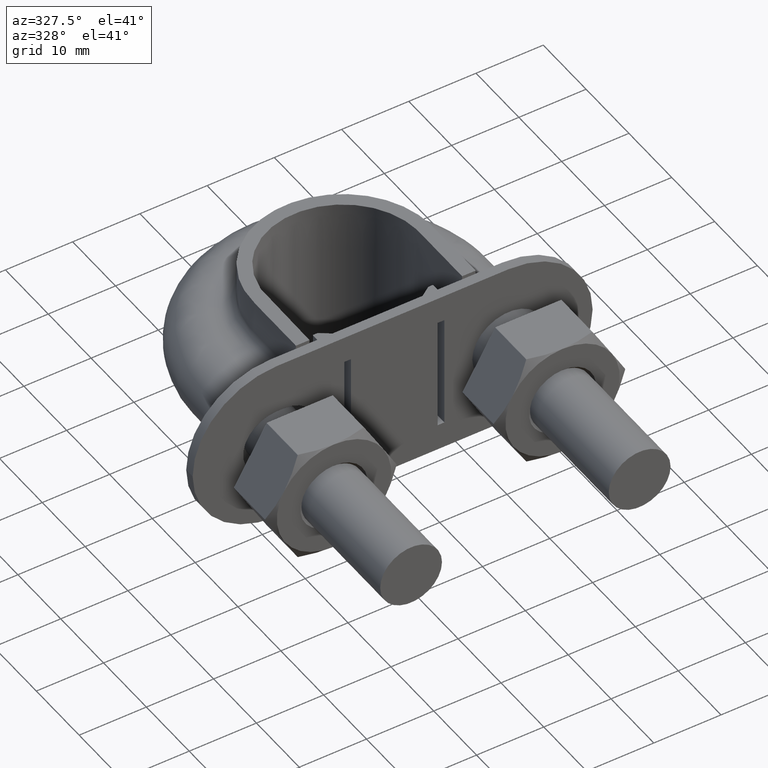
[diagram: clean part render]
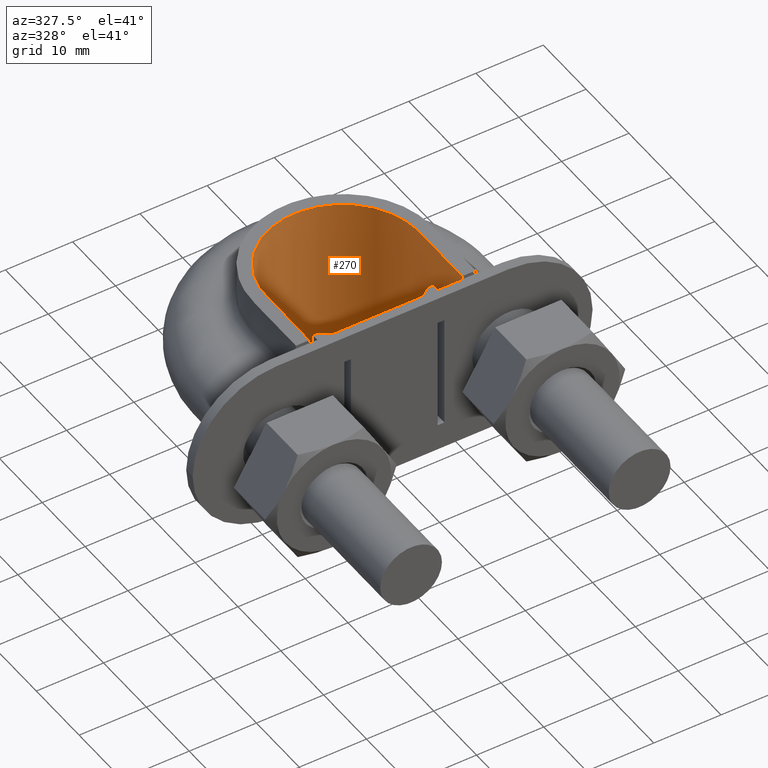
[diagram: same view with one face highlighted and labeled with its STEP entity id]
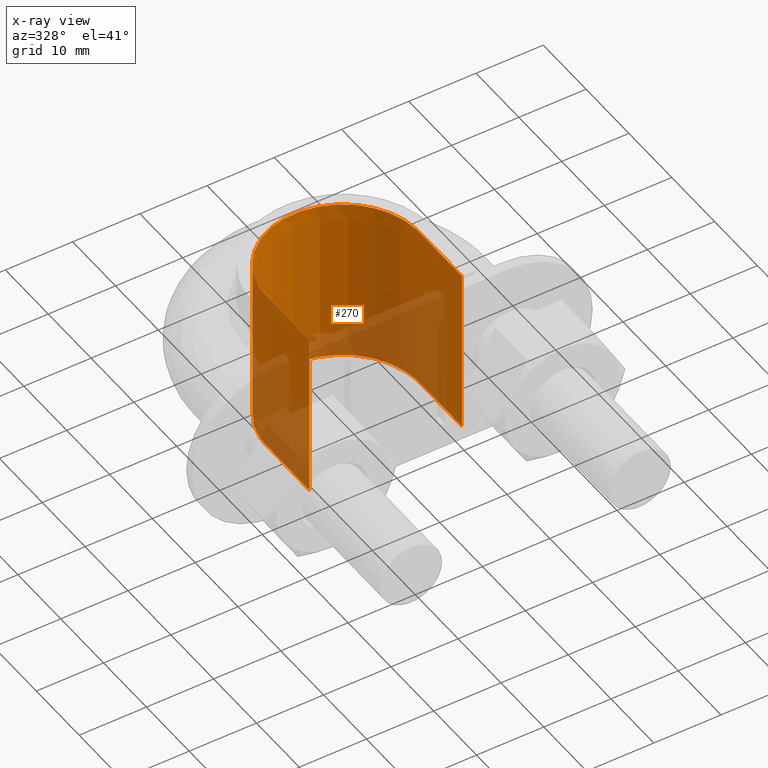
[diagram: x-ray of the same camera — body ghosted, the highlighted face saturated]
A machine part, auxiliary view. The second image highlights one B-rep face of the part: STEP entity #270.
The next image is the same camera in x-ray: the body ghosted, the highlighted face saturated — about 33% of this face is hidden behind the body in this view.
In plain terms, the highlighted face is a SurfaceOfExtrusion surface.
Its self-contained STEP definition (entity closure, byte-faithful):
#270 = ADVANCED_FACE( '', ( #389 ), #390, .T. );
#389 = FACE_OUTER_BOUND( '', #646, .T. );
#390 = SURFACE_OF_LINEAR_EXTRUSION( '', #647, #648 );
#646 = EDGE_LOOP( '', ( #1825, #1826, #1827, #1828 ) );
#647 = B_SPLINE_CURVE_WITH_KNOTS( '', 3, ( #1829, #1830, #1831, #1832, #1833, #1834, #1835, #1836, #1837, #1838, #1839, #1840, #1841, #1842, #1843, #1844, #1845, #1846, #1847 ), .UNSPECIFIED., .F., .F., ( 4, 3, 1, 1, 1, 3, 1, 1, 1, 3, 4 ), ( 0.233587786259540, 1.00000000000000, 1.50000000000000, 2.00000000000000, 3.00000000000000, 3.50000000000000, 4.00000000000000, 5.00000000000000, 5.50000000000000, 6.00000000000000, 6.76641221374046 ), .UNSPECIFIED. );
#648 = VECTOR( '', #1848, 1000.00000000000 );
#1825 = ORIENTED_EDGE( '', *, *, #2641, .F. );
#1826 = ORIENTED_EDGE( '', *, *, #2630, .F. );
#1827 = ORIENTED_EDGE( '', *, *, #2634, .T. );
#1828 = ORIENTED_EDGE( '', *, *, #2638, .T. );
#1829 = CARTESIAN_POINT( '', ( -11.3600000000000, 32.6000000000000, -51.4398853821152 ) );
#1830 = CARTESIAN_POINT( '', ( -11.3600000000000, 35.9466666666667, -51.4398853821152 ) );
#1831 = CARTESIAN_POINT( '', ( -11.3600000000000, 39.2933333333333, -51.4398853821152 ) );
#1832 = CARTESIAN_POINT( '', ( -11.3600000000000, 42.6400000000000, -51.4398853821152 ) );
#1833 = CARTESIAN_POINT( '', ( -11.3600000000000, 43.8077712693897, -51.4398853821152 ) );
#1834 = CARTESIAN_POINT( '', ( -10.9694754798677, 46.2135804441069, -51.4398853821152 ) );
#1835 = CARTESIAN_POINT( '', ( -8.80678888755957, 50.5012231129956, -51.4398853821152 ) );
#1836 = CARTESIAN_POINT( '', ( -4.75977254080473, 53.4440020251130, -51.4398853821152 ) );
#1837 = CARTESIAN_POINT( '', ( -1.18994313520117, 53.9957730711349, -51.4398853821152 ) );
#1838 = CARTESIAN_POINT( '', ( 1.35512505821535E-014, 53.9957730711349, -51.4398853821152 ) );
#1839 = CARTESIAN_POINT( '', ( 1.18994313520120, 53.9957730711349, -51.4398853821152 ) );
#1840 = CARTESIAN_POINT( '', ( 4.75977254080476, 53.4440020251129, -51.4398853821152 ) );
#1841 = CARTESIAN_POINT( '', ( 8.80678888755960, 50.5012231129957, -51.4398853821152 ) );
#1842 = CARTESIAN_POINT( '', ( 10.9694754798677, 46.2135804441069, -51.4398853821152 ) );
#1843 = CARTESIAN_POINT( '', ( 11.3600000000000, 43.8077712693896, -51.4398853821152 ) );
#1844 = CARTESIAN_POINT( '', ( 11.3600000000000, 42.6400000000000, -51.4398853821152 ) );
#1845 = CARTESIAN_POINT( '', ( 11.3600000000000, 39.2933333333333, -51.4398853821152 ) );
#1846 = CARTESIAN_POINT( '', ( 11.3600000000000, 35.9466666666667, -51.4398853821152 ) );
#1847 = CARTESIAN_POINT( '', ( 11.3600000000000, 32.6000000000000, -51.4398853821152 ) );
#1848 = DIRECTION( '', ( 0.000000000000000, 0.000000000000000, 1.00000000000000 ) );
#2630 = EDGE_CURVE( '', #2871, #2872, #2873, .T. );
#2634 = EDGE_CURVE( '', #2871, #2879, #2880, .T. );
#2638 = EDGE_CURVE( '', #2879, #2886, #2887, .T. );
#2641 = EDGE_CURVE( '', #2872, #2886, #2891, .T. );
#2871 = VERTEX_POINT( '', #3278 );
#2872 = VERTEX_POINT( '', #3279 );
#2873 = LINE( '', #3280, #3281 );
#2879 = VERTEX_POINT( '', #3319 );
#2880 = B_SPLINE_CURVE_WITH_KNOTS( '', 3, ( #3320, #3321, #3322, #3323, #3324, #3325, #3326, #3327, #3328, #3329, #3330, #3331, #3332, #3333, #3334, #3335, #3336, #3337, #3338 ), .UNSPECIFIED., .F., .F., ( 4, 3, 1, 1, 1, 3, 1, 1, 1, 3, 4 ), ( 0.233587786259540, 1.00000000000000, 1.50000000000000, 2.00000000000000, 3.00000000000000, 3.50000000000000, 4.00000000000000, 5.00000000000000, 5.50000000000000, 6.00000000000000, 6.76641221374046 ), .UNSPECIFIED. );
#2886 = VERTEX_POINT( '', #3372 );
#2887 = LINE( '', #3373, #3374 );
#2891 = B_SPLINE_CURVE_WITH_KNOTS( '', 3, ( #3409, #3410, #3411, #3412, #3413, #3414, #3415, #3416, #3417, #3418, #3419, #3420, #3421, #3422, #3423, #3424, #3425, #3426, #3427 ), .UNSPECIFIED., .F., .F., ( 4, 3, 1, 1, 1, 3, 1, 1, 1, 3, 4 ), ( 0.233587786259540, 1.00000000000000, 1.50000000000000, 2.00000000000000, 3.00000000000000, 3.50000000000000, 4.00000000000000, 5.00000000000000, 5.50000000000000, 6.00000000000000, 6.76641221374046 ), .UNSPECIFIED. );
#3278 = CARTESIAN_POINT( '', ( -11.3600000000000, 32.6000000000000, -12.5000000000000 ) );
#3279 = CARTESIAN_POINT( '', ( -11.3600000000000, 32.6000000000000, 12.5000000000000 ) );
#3280 = CARTESIAN_POINT( '', ( -11.3600000000000, 32.6000000000000, -51.4398853821152 ) );
#3281 = VECTOR( '', #4107, 1000.00000000000 );
#3319 = CARTESIAN_POINT( '', ( 11.3600000000000, 32.6000000000000, -12.5000000000000 ) );
#3320 = CARTESIAN_POINT( '', ( -11.3600000000000, 32.6000000000000, -12.5000000000000 ) );
#3321 = CARTESIAN_POINT( '', ( -11.3600000000000, 35.9466666666667, -12.5000000000000 ) );
#3322 = CARTESIAN_POINT( '', ( -11.3600000000000, 39.2933333333333, -12.5000000000000 ) );
#3323 = CARTESIAN_POINT( '', ( -11.3600000000000, 42.6400000000000, -12.5000000000000 ) );
#3324 = CARTESIAN_POINT( '', ( -11.3600000000000, 43.8077712693897, -12.5000000000000 ) );
#3325 = CARTESIAN_POINT( '', ( -10.9694754798677, 46.2135804441069, -12.5000000000000 ) );
#3326 = CARTESIAN_POINT( '', ( -8.80678888755957, 50.5012231129956, -12.5000000000000 ) );
#3327 = CARTESIAN_POINT( '', ( -4.75977254080473, 53.4440020251130, -12.5000000000000 ) );
#3328 = CARTESIAN_POINT( '', ( -1.18994313520117, 53.9957730711349, -12.5000000000000 ) );
#3329 = CARTESIAN_POINT( '', ( 1.35512505821535E-014, 53.9957730711349, -12.5000000000000 ) );
#3330 = CARTESIAN_POINT( '', ( 1.18994313520120, 53.9957730711349, -12.5000000000000 ) );
#3331 = CARTESIAN_POINT( '', ( 4.75977254080476, 53.4440020251129, -12.5000000000000 ) );
#3332 = CARTESIAN_POINT( '', ( 8.80678888755960, 50.5012231129957, -12.5000000000000 ) );
#3333 = CARTESIAN_POINT( '', ( 10.9694754798677, 46.2135804441069, -12.5000000000000 ) );
#3334 = CARTESIAN_POINT( '', ( 11.3600000000000, 43.8077712693896, -12.5000000000000 ) );
#3335 = CARTESIAN_POINT( '', ( 11.3600000000000, 42.6400000000000, -12.5000000000000 ) );
#3336 = CARTESIAN_POINT( '', ( 11.3600000000000, 39.2933333333333, -12.5000000000000 ) );
#3337 = CARTESIAN_POINT( '', ( 11.3600000000000, 35.9466666666667, -12.5000000000000 ) );
#3338 = CARTESIAN_POINT( '', ( 11.3600000000000, 32.6000000000000, -12.5000000000000 ) );
#3372 = CARTESIAN_POINT( '', ( 11.3600000000000, 32.6000000000000, 12.5000000000000 ) );
#3373 = CARTESIAN_POINT( '', ( 11.3600000000000, 32.6000000000000, -51.4398853821152 ) );
#3374 = VECTOR( '', #4111, 1000.00000000000 );
#3409 = CARTESIAN_POINT( '', ( -11.3600000000000, 32.6000000000000, 12.5000000000000 ) );
#3410 = CARTESIAN_POINT( '', ( -11.3600000000000, 35.9466666666667, 12.5000000000000 ) );
#3411 = CARTESIAN_POINT( '', ( -11.3600000000000, 39.2933333333333, 12.5000000000000 ) );
#3412 = CARTESIAN_POINT( '', ( -11.3600000000000, 42.6400000000000, 12.5000000000000 ) );
#3413 = CARTESIAN_POINT( '', ( -11.3600000000000, 43.8077712693897, 12.5000000000000 ) );
#3414 = CARTESIAN_POINT( '', ( -10.9694754798677, 46.2135804441069, 12.5000000000000 ) );
#3415 = CARTESIAN_POINT( '', ( -8.80678888755957, 50.5012231129956, 12.5000000000000 ) );
#3416 = CARTESIAN_POINT( '', ( -4.75977254080473, 53.4440020251130, 12.5000000000000 ) );
#3417 = CARTESIAN_POINT( '', ( -1.18994313520117, 53.9957730711349, 12.5000000000000 ) );
#3418 = CARTESIAN_POINT( '', ( 1.35512505821535E-014, 53.9957730711349, 12.5000000000000 ) );
#3419 = CARTESIAN_POINT( '', ( 1.18994313520120, 53.9957730711349, 12.5000000000000 ) );
#3420 = CARTESIAN_POINT( '', ( 4.75977254080476, 53.4440020251129, 12.5000000000000 ) );
#3421 = CARTESIAN_POINT( '', ( 8.80678888755960, 50.5012231129957, 12.5000000000000 ) );
#3422 = CARTESIAN_POINT( '', ( 10.9694754798677, 46.2135804441069, 12.5000000000000 ) );
#3423 = CARTESIAN_POINT( '', ( 11.3600000000000, 43.8077712693896, 12.5000000000000 ) );
#3424 = CARTESIAN_POINT( '', ( 11.3600000000000, 42.6400000000000, 12.5000000000000 ) );
#3425 = CARTESIAN_POINT( '', ( 11.3600000000000, 39.2933333333333, 12.5000000000000 ) );
#3426 = CARTESIAN_POINT( '', ( 11.3600000000000, 35.9466666666667, 12.5000000000000 ) );
#3427 = CARTESIAN_POINT( '', ( 11.3600000000000, 32.6000000000000, 12.5000000000000 ) );
#4107 = DIRECTION( '', ( 0.000000000000000, 0.000000000000000, 1.00000000000000 ) );
#4111 = DIRECTION( '', ( 0.000000000000000, 0.000000000000000, 1.00000000000000 ) );